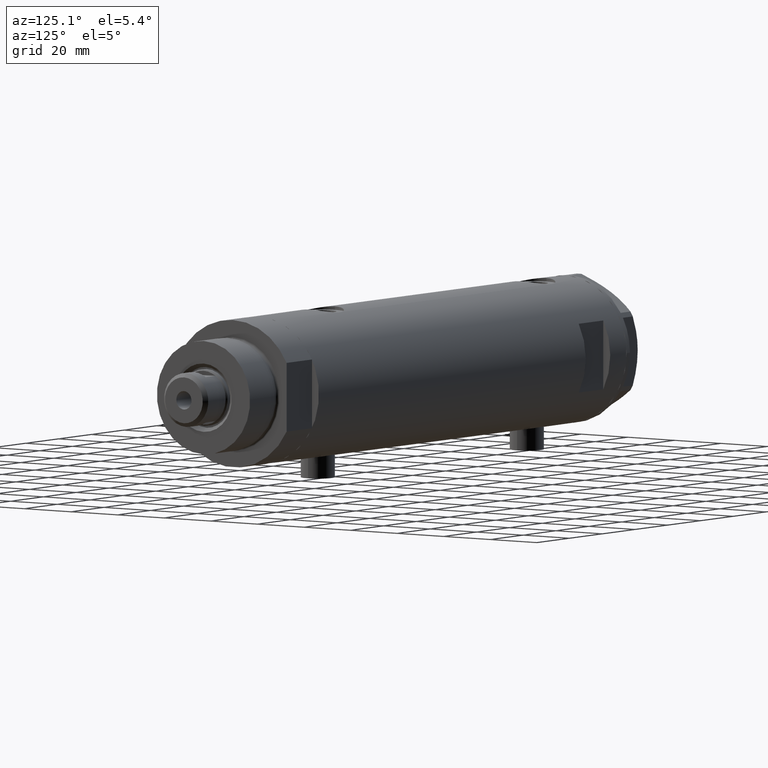
[diagram: clean part render]
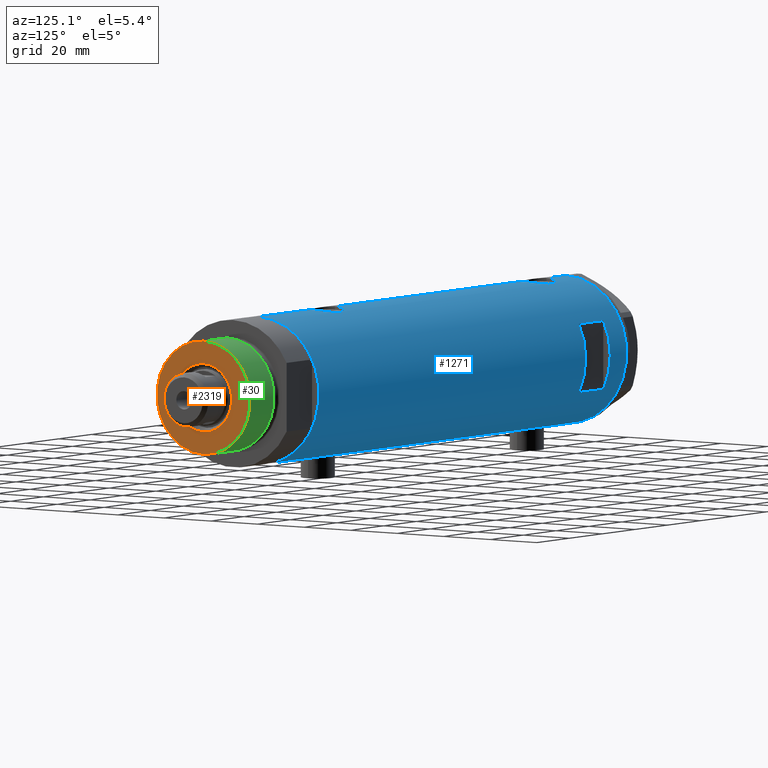
[diagram: same view with three faces highlighted in distinct colors, each labeled with its STEP entity id]
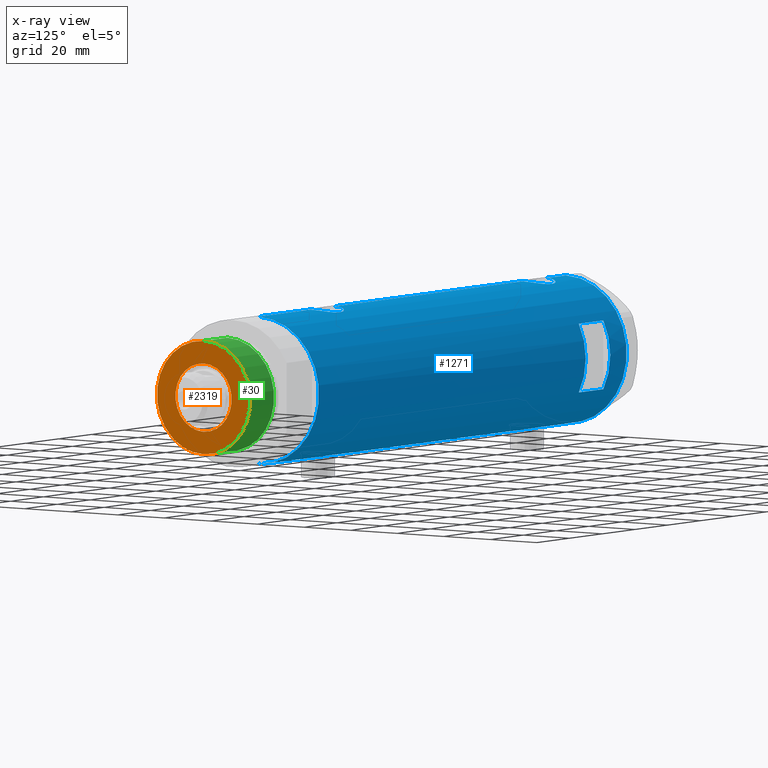
[diagram: x-ray of the same camera — body ghosted, the three highlighted faces saturated]
A machine part, auxiliary view with three faces highlighted in distinct colors.
The next image is the same camera in x-ray (body ghosted, the three faces saturated) — at least one of them is partly hidden behind the body in this view.
Their STEP definitions:

[orange] entity #2319 — the highlighted planar face has unit normal (1, 0, -0).
#89 = EDGE_CURVE ( 'NONE', #1441, #4258, #2733, .T. ) ;
#123 = AXIS2_PLACEMENT_3D ( 'NONE', #3427, #3819, #2581 ) ;
#300 = CARTESIAN_POINT ( 'NONE',  ( 0.000000000000000000, 0.000000000000000000, 33.50000000000000000 ) ) ;
#323 = CARTESIAN_POINT ( 'NONE',  ( -12.05000000000000426, 1.475699392972560823E-15, 33.50000000000000000 ) ) ;
#462 = ORIENTED_EDGE ( 'NONE', *, *, #3017, .T. ) ;
#710 = DIRECTION ( 'NONE',  ( 1.000000000000000000, 0.000000000000000000, 0.000000000000000000 ) ) ;
#747 = VERTEX_POINT ( 'NONE', #3946 ) ;
#886 = CARTESIAN_POINT ( 'NONE',  ( -19.99999999999999645, 0.000000000000000000, 33.50000000000000000 ) ) ;
#1327 = CIRCLE ( 'NONE', #1872, 12.05000000000000426 ) ;
#1407 = CIRCLE ( 'NONE', #4160, 19.99999999999999645 ) ;
#1441 = VERTEX_POINT ( 'NONE', #323 ) ;
#1477 = FACE_OUTER_BOUND ( 'NONE', #2098, .T. ) ;
#1651 = CARTESIAN_POINT ( 'NONE',  ( 0.000000000000000000, 0.000000000000000000, 33.50000000000000000 ) ) ;
#1741 = ORIENTED_EDGE ( 'NONE', *, *, #2945, .T. ) ;
#1804 = CARTESIAN_POINT ( 'NONE',  ( 0.000000000000000000, 0.000000000000000000, 33.50000000000000000 ) ) ;
#1821 = DIRECTION ( 'NONE',  ( 0.000000000000000000, 0.000000000000000000, 1.000000000000000000 ) ) ;
#1872 = AXIS2_PLACEMENT_3D ( 'NONE', #1804, #2934, #3367 ) ;
#2098 = EDGE_LOOP ( 'NONE', ( #462, #1741 ) ) ;
#2194 = DIRECTION ( 'NONE',  ( 0.000000000000000000, 0.000000000000000000, 1.000000000000000000 ) ) ;
#2286 = PLANE ( 'NONE',  #123 ) ;
#2319 = ADVANCED_FACE ( 'NONE', ( #4576, #1477 ), #2286, .T. ) ;
#2380 = DIRECTION ( 'NONE',  ( 1.000000000000000000, 0.000000000000000000, 0.000000000000000000 ) ) ;
#2405 = EDGE_LOOP ( 'NONE', ( #3896, #4763 ) ) ;
#2575 = AXIS2_PLACEMENT_3D ( 'NONE', #1651, #4699, #2380 ) ;
#2581 = DIRECTION ( 'NONE',  ( 1.000000000000000000, 0.000000000000000000, -0.000000000000000000 ) ) ;
#2620 = EDGE_CURVE ( 'NONE', #4258, #1441, #1327, .T. ) ;
#2733 = CIRCLE ( 'NONE', #2575, 12.05000000000000426 ) ;
#2934 = DIRECTION ( 'NONE',  ( -0.000000000000000000, -0.000000000000000000, -1.000000000000000000 ) ) ;
#2945 = EDGE_CURVE ( 'NONE', #747, #4278, #1407, .T. ) ;
#3017 = EDGE_CURVE ( 'NONE', #4278, #747, #3920, .T. ) ;
#3367 = DIRECTION ( 'NONE',  ( 1.000000000000000000, 0.000000000000000000, 0.000000000000000000 ) ) ;
#3427 = CARTESIAN_POINT ( 'NONE',  ( 0.000000000000000000, 0.000000000000000000, 33.50000000000000000 ) ) ;
#3574 = CARTESIAN_POINT ( 'NONE',  ( 0.000000000000000000, 0.000000000000000000, 33.50000000000000000 ) ) ;
#3819 = DIRECTION ( 'NONE',  ( 0.000000000000000000, 0.000000000000000000, 1.000000000000000000 ) ) ;
#3851 = AXIS2_PLACEMENT_3D ( 'NONE', #3574, #1821, #4122 ) ;
#3896 = ORIENTED_EDGE ( 'NONE', *, *, #2620, .T. ) ;
#3920 = CIRCLE ( 'NONE', #3851, 19.99999999999999645 ) ;
#3946 = CARTESIAN_POINT ( 'NONE',  ( 19.99999999999999645, 2.449293598294706119E-15, 33.50000000000000000 ) ) ;
#4122 = DIRECTION ( 'NONE',  ( 1.000000000000000000, 0.000000000000000000, 0.000000000000000000 ) ) ;
#4160 = AXIS2_PLACEMENT_3D ( 'NONE', #300, #2194, #710 ) ;
#4258 = VERTEX_POINT ( 'NONE', #4843 ) ;
#4278 = VERTEX_POINT ( 'NONE', #886 ) ;
#4576 = FACE_BOUND ( 'NONE', #2405, .T. ) ;
#4699 = DIRECTION ( 'NONE',  ( -0.000000000000000000, -0.000000000000000000, -1.000000000000000000 ) ) ;
#4763 = ORIENTED_EDGE ( 'NONE', *, *, #89, .T. ) ;
#4843 = CARTESIAN_POINT ( 'NONE',  ( 12.05000000000000426, 0.000000000000000000, 33.50000000000000000 ) ) ;

[blue] entity #1271 — the highlighted cylindrical surface (partial cylindrical patch) has radius 26 mm, axis along (-1, -0, 0).
#6 = CARTESIAN_POINT ( 'NONE',  ( 25.78997056644825392, 3.329333406239046056, 81.18834808433850014 ) ) ;
#40 = CARTESIAN_POINT ( 'NONE',  ( -25.33346170681504006, 5.849967696906726466, -55.44052947900495809 ) ) ;
#48 = CARTESIAN_POINT ( 'NONE',  ( 12.12435565298213724, 23.00000000000000355, 68.95000000000000284 ) ) ;
#61 = DIRECTION ( 'NONE',  ( 0.000000000000000000, 1.000000000000000000, -4.803849625781927035E-15 ) ) ;
#71 = VECTOR ( 'NONE', #3741, 1000.000000000000000 ) ;
#118 = CIRCLE ( 'NONE', #1089, 26.00000000000000355 ) ;
#121 = CARTESIAN_POINT ( 'NONE',  ( -25.95015815577422913, 1.621168830448742826, 75.98958570439820903 ) ) ;
#137 = CIRCLE ( 'NONE', #4246, 26.00000000000000355 ) ;
#140 = DIRECTION ( 'NONE',  ( 0.000000000000000000, 0.000000000000000000, 1.000000000000000000 ) ) ;
#146 = CARTESIAN_POINT ( 'NONE',  ( -26.00000000000000711, 0.2043916521039016998, -63.90000000000001279 ) ) ;
#178 = VERTEX_POINT ( 'NONE', #3461 ) ;
#191 = CARTESIAN_POINT ( 'NONE',  ( -25.45277932469920046, 5.307477387851101014, 66.64327199834690418 ) ) ;
#210 = VERTEX_POINT ( 'NONE', #48 ) ;
#213 = CARTESIAN_POINT ( 'NONE',  ( 25.94484652078418563, 1.709678645892022342, 67.14334653240823059 ) ) ;
#221 = CARTESIAN_POINT ( 'NONE',  ( 24.97016856345952718, 7.245430721349219283, -56.70303040919392856 ) ) ;
#232 = EDGE_CURVE ( 'NONE', #1229, #3112, #508, .T. ) ;
#240 = CARTESIAN_POINT ( 'NONE',  ( 25.17424625143663519, 6.506691718592092499, 70.68758373966274178 ) ) ;
#264 = CARTESIAN_POINT ( 'NONE',  ( -26.00000000000000355, 3.184077527325983904E-15, 63.70000000000000995 ) ) ;
#271 = CARTESIAN_POINT ( 'NONE',  ( 25.78997056644824326, 3.329333406239038951, -48.01165191566153112 ) ) ;
#288 = EDGE_CURVE ( 'NONE', #1116, #2578, #3134, .T. ) ;
#304 = CARTESIAN_POINT ( 'NONE',  ( 25.31017500740584936, 5.951503630041857562, -50.17950407362597076 ) ) ;
#320 = CARTESIAN_POINT ( 'NONE',  ( 25.99652140603931727, 0.4914164889130596126, 81.93796820480459075 ) ) ;
#328 = CARTESIAN_POINT ( 'NONE',  ( 25.03487248886523986, 7.018875226450791871, -57.40423217392064714 ) ) ;
#413 = LINE ( 'NONE', #1226, #3926 ) ;
#418 = ORIENTED_EDGE ( 'NONE', *, *, #966, .F. ) ;
#450 = DIRECTION ( 'NONE',  ( 1.000000000000000000, -5.329070518200751394E-15, 0.000000000000000000 ) ) ;
#507 = EDGE_CURVE ( 'NONE', #4199, #4585, #1503, .T. ) ;
#508 = B_SPLINE_CURVE_WITH_KNOTS ( 'NONE', 3,
 ( #3068, #4565, #4604, #3828, #873, #3880, #1519, #3014, #1285, #2979, #1382, #3338, #2209, #4210, #1861, #40, #1895, #1156, #4159, #3051, #833, #814, #3932, #525, #1247, #2374, #2020, #3152, #859, #1277, #4666, #3178, #954, #1617, #2770, #3865, #903, #2388, #3905, #1295, #3491, #3541, #146, #2813 ),
 .UNSPECIFIED., .F., .F.,
 ( 4, 2, 2, 2, 2, 2, 2, 2, 2, 2, 2, 2, 2, 2, 2, 2, 2, 2, 2, 2, 2, 4 ),
 ( 8.259724962660511443E-19, 0.001225774033668413547, 0.001838661050502616960, 0.002451548067336820590, 0.003677322101005227849, 0.004903096134673635108, 0.006128870168342044969, 0.007354644202010452228, 0.007967531218844647184, 0.008580418235678840405, 0.009806192269347230317, 0.01103196630301561676, 0.01225774033668400667, 0.01287062735351820163, 0.01348351437035239485, 0.01409640138718658807, 0.01470928840402078129, 0.01593506243768920069, 0.01716083647135761489, 0.01838661050502603256, 0.01899949752186024313, 0.01961238453869445023 ),
 .UNSPECIFIED. ) ;
#518 = CARTESIAN_POINT ( 'NONE',  ( 25.86510134953875450, 2.654921787384013854, 67.43132938305096502 ) ) ;
#525 = CARTESIAN_POINT ( 'NONE',  ( -25.28673619335056699, 6.048783215285175707, -59.27550990348180449 ) ) ;
#548 = CARTESIAN_POINT ( 'NONE',  ( 24.90951684770588770, 7.451587374037535128, 73.46604395478802019 ) ) ;
#582 = DIRECTION ( 'NONE',  ( 0.000000000000000000, 0.000000000000000000, 1.000000000000000000 ) ) ;
#603 = CARTESIAN_POINT ( 'NONE',  ( 25.97197502027375293, 1.230965554787593730, -47.34759175501623218 ) ) ;
#604 = CARTESIAN_POINT ( 'NONE',  ( -25.49884629689154281, 5.081547904122039938, 66.30560194303913590 ) ) ;
#626 = CARTESIAN_POINT ( 'NONE',  ( 25.52465069878074289, 4.952713637311392247, 68.81255139184744962 ) ) ;
#635 = CARTESIAN_POINT ( 'NONE',  ( 25.98569222077104968, 0.9879514382926379845, -62.20081846687560301 ) ) ;
#636 = CARTESIAN_POINT ( 'NONE',  ( -25.99759026373432391, 0.4091325989570679389, 63.71000109955102175 ) ) ;
#654 = CARTESIAN_POINT ( 'NONE',  ( 25.38117076385347559, 5.641057083563602248, 79.39856579741847042 ) ) ;
#662 = CARTESIAN_POINT ( 'NONE',  ( 25.98255381630415783, 0.9836221648041303389, -47.31066901941807856 ) ) ;
#684 = CARTESIAN_POINT ( 'NONE',  ( 25.27545867390324119, 6.096774941222088628, -50.37522593042033492 ) ) ;
#689 = CARTESIAN_POINT ( 'NONE',  ( 26.00000000000000355, -3.975025925197986111E-20, -47.25000000000000000 ) ) ;
#698 = CARTESIAN_POINT ( 'NONE',  ( 24.89471231507667426, 7.500219916954787180, 74.93878226883029470 ) ) ;
#714 = CARTESIAN_POINT ( 'NONE',  ( 25.20855488770171959, 6.367749707222635891, -50.77997776959043108 ) ) ;
#718 = VECTOR ( 'NONE', #582, 1000.000000000000000 ) ;
#749 = CARTESIAN_POINT ( 'NONE',  ( 26.00000000000000711, 0.2455784580650491045, 81.94999999999997442 ) ) ;
#755 = CARTESIAN_POINT ( 'NONE',  ( -26.00000000000000355, 1.227111019500118713E-15, 76.20000000000001705 ) ) ;
#766 = DIRECTION ( 'NONE',  ( 0.000000000000000000, 0.000000000000000000, 1.000000000000000000 ) ) ;
#780 = ORIENTED_EDGE ( 'NONE', *, *, #288, .F. ) ;
#783 = CIRCLE ( 'NONE', #3528, 26.00000000000000355 ) ;
#814 = CARTESIAN_POINT ( 'NONE',  ( -25.23757896588369221, 6.250168635417633567, -58.05675308410501145 ) ) ;
#833 = CARTESIAN_POINT ( 'NONE',  ( -25.23766275406409676, 6.249830297096031551, -57.23808095444884003 ) ) ;
#859 = CARTESIAN_POINT ( 'NONE',  ( -25.45277932469921467, 5.307477387851106343, -60.95672800165311855 ) ) ;
#873 = CARTESIAN_POINT ( 'NONE',  ( -25.95015815577423268, 1.621168830448744158, -51.61041429560182081 ) ) ;
#896 = CARTESIAN_POINT ( 'NONE',  ( 25.11254978876589306, 6.737777305585155752, 71.11974648253585940 ) ) ;
#899 = CARTESIAN_POINT ( 'NONE',  ( -12.12435565298214080, 23.00000000000000355, 83.95000000000000284 ) ) ;
#903 = CARTESIAN_POINT ( 'NONE',  ( -25.85449082491264150, 2.772892880050693787, -63.26609297485322259 ) ) ;
#915 = CARTESIAN_POINT ( 'NONE',  ( 25.88814720404043968, 2.420758939209242566, 67.34711713171545000 ) ) ;
#942 = CARTESIAN_POINT ( 'NONE',  ( 26.00000000000001066, 0.4983968644076011700, 66.95000000000003126 ) ) ;
#954 = CARTESIAN_POINT ( 'NONE',  ( -25.59680708126580129, 4.563450671387948354, -61.92543949979970819 ) ) ;
#966 = EDGE_CURVE ( 'NONE', #178, #4199, #4824, .T. ) ;
#972 = EDGE_CURVE ( 'NONE', #4128, #2330, #4475, .T. ) ;
#979 = CARTESIAN_POINT ( 'NONE',  ( -25.95208098418916975, 1.628413954368974625, 63.90193207829288013 ) ) ;
#994 = CARTESIAN_POINT ( 'NONE',  ( 25.78922176490238272, 3.335318700939508219, 67.71449431233527605 ) ) ;
#1003 = CARTESIAN_POINT ( 'NONE',  ( 24.95233689475079331, 7.306396477445179727, -56.46103813146666539 ) ) ;
#1004 = CARTESIAN_POINT ( 'NONE',  ( -25.38875076695534361, 5.605452563035131064, 67.17814099175893716 ) ) ;
#1025 = CARTESIAN_POINT ( 'NONE',  ( 24.90976107960111818, 7.450765568638821001, 75.43882869351466525 ) ) ;
#1036 = CARTESIAN_POINT ( 'NONE',  ( 25.72868876879095623, 3.768709330223690479, -48.24732513129933409 ) ) ;
#1060 = CARTESIAN_POINT ( 'NONE',  ( 25.17636585680005723, 6.493453152855874322, -50.98900750337196541 ) ) ;
#1061 = CARTESIAN_POINT ( 'NONE',  ( -25.36894112891957320, 5.694149517195235433, 67.36517494801691441 ) ) ;
#1073 = CARTESIAN_POINT ( 'NONE',  ( 26.00000000000000355, -3.975028449552882818E-20, 81.94999999999998863 ) ) ;
#1089 = AXIS2_PLACEMENT_3D ( 'NONE', #4227, #1134, #61 ) ;
#1116 = VERTEX_POINT ( 'NONE', #755 ) ;
#1120 = CARTESIAN_POINT ( 'NONE',  ( 25.52590365620543622, 4.955152228772151446, 80.10123727588241138 ) ) ;
#1134 = DIRECTION ( 'NONE',  ( 0.000000000000000000, 4.625929269271486900E-15, 1.000000000000000000 ) ) ;
#1156 = CARTESIAN_POINT ( 'NONE',  ( -25.28915991580758771, 6.038390257328915212, -56.02447348853092279 ) ) ;
#1188 = CARTESIAN_POINT ( 'NONE',  ( 0.000000000000000000, 0.000000000000000000, -93.95000000000000284 ) ) ;
#1225 = CARTESIAN_POINT ( 'NONE',  ( -25.67095236150574777, 4.133649689219788925, 74.65535228274264057 ) ) ;
#1226 = CARTESIAN_POINT ( 'NONE',  ( -26.00000000000000355, 3.184081677783118585E-15, -93.95000000000000284 ) ) ;
#1229 = VERTEX_POINT ( 'NONE', #3535 ) ;
#1239 = CYLINDRICAL_SURFACE ( 'NONE', #2507, 26.00000000000000355 ) ;
#1247 = CARTESIAN_POINT ( 'NONE',  ( -25.31518616157687163, 5.930210831981644226, -59.66587117207024704 ) ) ;
#1271 = ADVANCED_FACE ( 'NONE', ( #3561, #3859 ), #1239, .T. ) ;
#1277 = CARTESIAN_POINT ( 'NONE',  ( -25.49884629689154636, 5.081547904122044379, -61.29439805696090815 ) ) ;
#1285 = CARTESIAN_POINT ( 'NONE',  ( -25.81251897318926680, 3.135439098787741852, -52.22800821914827907 ) ) ;
#1287 = CARTESIAN_POINT ( 'NONE',  ( 25.72923282622328500, 3.765147152416739917, 67.94514424215293502 ) ) ;
#1295 = CARTESIAN_POINT ( 'NONE',  ( -25.98057228346870673, 1.024901789261887464, -63.81880585854828070 ) ) ;
#1302 = ORIENTED_EDGE ( 'NONE', *, *, #1606, .F. ) ;
#1323 = LINE ( 'NONE', #2525, #718 ) ;
#1372 = CARTESIAN_POINT ( 'NONE',  ( 25.59685363299823280, 4.579266302355748053, -48.79027931897346804 ) ) ;
#1374 = CARTESIAN_POINT ( 'NONE',  ( -25.98057228346869607, 1.024901789261878138, 63.78119414145174204 ) ) ;
#1382 = CARTESIAN_POINT ( 'NONE',  ( -25.67095236150573712, 4.133649689219792478, -52.94464771725741770 ) ) ;
#1384 = EDGE_CURVE ( 'NONE', #2828, #4128, #4708, .T. ) ;
#1386 = VERTEX_POINT ( 'NONE', #3584 ) ;
#1387 = CARTESIAN_POINT ( 'NONE',  ( 25.63006864069250668, 4.375159448492141223, 68.35345588241118264 ) ) ;
#1396 = CARTESIAN_POINT ( 'NONE',  ( 25.38132706741445688, 5.649034551923786118, -59.70731952814044519 ) ) ;
#1397 = CARTESIAN_POINT ( 'NONE',  ( -25.24766879991037172, 6.209837761082654062, 70.76849569029700149 ) ) ;
#1423 = CARTESIAN_POINT ( 'NONE',  ( 25.30960479024496479, 5.958491152160522830, -59.33139677679963597 ) ) ;
#1424 = CARTESIAN_POINT ( 'NONE',  ( -25.52275868012768356, 4.960454986366445773, 66.14238370593371030 ) ) ;
#1434 = LINE ( 'NONE', #2176, #3158 ) ;
#1488 = CARTESIAN_POINT ( 'NONE',  ( 25.31017500740586001, 5.951503630041874437, 79.02049592637401076 ) ) ;
#1503 = LINE ( 'NONE', #3000, #2496 ) ;
#1519 = CARTESIAN_POINT ( 'NONE',  ( -25.90661719257678541, 2.209805098346977914, -51.80011254218477745 ) ) ;
#1534 = EDGE_LOOP ( 'NONE', ( #3155, #2531, #2011, #4692, #780, #1904, #2774, #3426, #1650, #2391, #418, #2227 ) ) ;
#1574 = EDGE_CURVE ( 'NONE', #4581, #178, #4828, .T. ) ;
#1598 = CARTESIAN_POINT ( 'NONE',  ( -25.81251897318926680, 3.135439098787735190, 75.37199178085172946 ) ) ;
#1606 = EDGE_CURVE ( 'NONE', #3602, #3039, #783, .T. ) ;
#1608 = CARTESIAN_POINT ( 'NONE',  ( 0.000000000000000000, 0.000000000000000000, 83.95000000000000284 ) ) ;
#1617 = CARTESIAN_POINT ( 'NONE',  ( -25.67176285215958131, 4.128807479817791837, -62.35991598451128226 ) ) ;
#1644 = CARTESIAN_POINT ( 'NONE',  ( -26.00000000000000355, 3.184077527250253257E-15, -63.90000000000001279 ) ) ;
#1650 = ORIENTED_EDGE ( 'NONE', *, *, #3945, .F. ) ;
#1663 = EDGE_CURVE ( 'NONE', #1116, #2330, #413, .T. ) ;
#1681 = CARTESIAN_POINT ( 'NONE',  ( -25.90661719257679607, 2.209805098346973029, 75.79988745781523107 ) ) ;
#1683 = EDGE_CURVE ( 'NONE', #210, #1386, #118, .T. ) ;
#1729 = CARTESIAN_POINT ( 'NONE',  ( 25.92799636947105668, 1.948138538329397651, 67.20322312211786198 ) ) ;
#1736 = CARTESIAN_POINT ( 'NONE',  ( 24.89484527721569052, 7.499778575171895056, -55.24550805482936511 ) ) ;
#1751 = CARTESIAN_POINT ( 'NONE',  ( 25.01140519645288762, 7.101774040639619479, 72.02607764299175130 ) ) ;
#1758 = CARTESIAN_POINT ( 'NONE',  ( 25.78922176490237916, 3.335318700939508219, -61.48550568766475521 ) ) ;
#1759 = CARTESIAN_POINT ( 'NONE',  ( -25.92432690655987315, 2.018143994254077978, 64.02070577177286737 ) ) ;
#1781 = CARTESIAN_POINT ( 'NONE',  ( 24.96662810169869573, 7.257932614256868753, -52.79702690473266102 ) ) ;
#1782 = CARTESIAN_POINT ( 'NONE',  ( -25.23766275406408965, 6.249830297096023557, 70.36191904555120402 ) ) ;
#1801 = CARTESIAN_POINT ( 'NONE',  ( 25.00820649268565887, 7.115348876445588999, 76.87184000475453161 ) ) ;
#1810 = CARTESIAN_POINT ( 'NONE',  ( 25.93077501166307641, 1.957027822413551332, -47.49302141437592439 ) ) ;
#1826 = CARTESIAN_POINT ( 'NONE',  ( 25.93077501166307641, 1.957027822413550888, 81.70697858562411398 ) ) ;
#1834 = CARTESIAN_POINT ( 'NONE',  ( 25.41763780493360514, 5.474943943663457269, -49.61823686211067042 ) ) ;
#1850 = CARTESIAN_POINT ( 'NONE',  ( -26.00000000000000355, 3.184081677783118585E-15, -93.95000000000000284 ) ) ;
#1861 = CARTESIAN_POINT ( 'NONE',  ( -25.38675822915647728, 5.615881323213575804, -54.87693218337989265 ) ) ;
#1865 = CARTESIAN_POINT ( 'NONE',  ( 26.00000000000000355, 0.000000000000000000, -93.95000000000000284 ) ) ;
#1881 = VECTOR ( 'NONE', #4112, 1000.000000000000000 ) ;
#1895 = CARTESIAN_POINT ( 'NONE',  ( -25.31738333113901618, 5.918941409682884291, -55.63242077527677765 ) ) ;
#1904 = ORIENTED_EDGE ( 'NONE', *, *, #1663, .T. ) ;
#2011 = ORIENTED_EDGE ( 'NONE', *, *, #232, .F. ) ;
#2012 = CARTESIAN_POINT ( 'NONE',  ( 26.00000000000000355, -2.747580718823405516E-15, 66.95000000000000284 ) ) ;
#2020 = CARTESIAN_POINT ( 'NONE',  ( -25.38875076695534361, 5.605452563035141722, -60.42185900824105715 ) ) ;
#2045 = CARTESIAN_POINT ( 'NONE',  ( -25.96182217530153480, 1.422664245316465959, 76.03935273092392322 ) ) ;
#2062 = CARTESIAN_POINT ( 'NONE',  ( 26.00000000000000355, 0.000000000000000000, -93.95000000000000284 ) ) ;
#2092 = CARTESIAN_POINT ( 'NONE',  ( -25.31518616157687518, 5.930210831981638009, 67.93412882792976859 ) ) ;
#2102 = ORIENTED_EDGE ( 'NONE', *, *, #2433, .F. ) ;
#2116 = CARTESIAN_POINT ( 'NONE',  ( -12.12435565298214080, 23.00000000000000355, -93.95000000000000284 ) ) ;
#2138 = LINE ( 'NONE', #1850, #71 ) ;
#2176 = CARTESIAN_POINT ( 'NONE',  ( 12.12435565298214080, 23.00000000000000355, -93.95000000000000284 ) ) ;
#2187 = CARTESIAN_POINT ( 'NONE',  ( 25.17636585680005723, 6.493453152855874322, 78.21099249662802322 ) ) ;
#2198 = CARTESIAN_POINT ( 'NONE',  ( 25.52590365620542912, 4.955152228772147893, -49.09876272411761988 ) ) ;
#2209 = CARTESIAN_POINT ( 'NONE',  ( -25.52242378584900351, 4.965907353613399522, -53.83280397078263491 ) ) ;
#2227 = ORIENTED_EDGE ( 'NONE', *, *, #1574, .F. ) ;
#2235 = CARTESIAN_POINT ( 'NONE',  ( 24.96662810169869573, 7.257932614256865200, 76.40297309526735603 ) ) ;
#2258 = CARTESIAN_POINT ( 'NONE',  ( 26.00000000000000355, -2.747580718823405516E-15, 66.95000000000000284 ) ) ;
#2290 = CARTESIAN_POINT ( 'NONE',  ( 12.12435565298214080, 23.00000000000000355, 83.95000000000000284 ) ) ;
#2330 = VERTEX_POINT ( 'NONE', #2806 ) ;
#2354 = CARTESIAN_POINT ( 'NONE',  ( -25.42927140605242187, 5.422776733968214025, 73.08443996013286892 ) ) ;
#2374 = CARTESIAN_POINT ( 'NONE',  ( -25.36894112891956254, 5.694149517195242538, -60.23482505198307990 ) ) ;
#2383 = CARTESIAN_POINT ( 'NONE',  ( 24.97016856345952007, 7.245430721349213954, 72.49696959080606007 ) ) ;
#2384 = CARTESIAN_POINT ( 'NONE',  ( 0.000000000000000000, 0.000000000000000000, -93.95000000000000284 ) ) ;
#2388 = CARTESIAN_POINT ( 'NONE',  ( -25.92432690655987315, 2.018143994254076201, -63.57929422822715537 ) ) ;
#2391 = ORIENTED_EDGE ( 'NONE', *, *, #507, .F. ) ;
#2433 = EDGE_CURVE ( 'NONE', #1386, #3602, #4680, .T. ) ;
#2463 = DIRECTION ( 'NONE',  ( 0.000000000000000000, 0.000000000000000000, 1.000000000000000000 ) ) ;
#2468 = CARTESIAN_POINT ( 'NONE',  ( -25.38675822915647728, 5.615881323213574028, 72.72306781662010167 ) ) ;
#2496 = VECTOR ( 'NONE', #4609, 1000.000000000000000 ) ;
#2497 = CARTESIAN_POINT ( 'NONE',  ( 0.000000000000000000, 0.000000000000000000, 93.95000000000000284 ) ) ;
#2504 = DIRECTION ( 'NONE',  ( -0.000000000000000000, -0.000000000000000000, -1.000000000000000000 ) ) ;
#2507 = AXIS2_PLACEMENT_3D ( 'NONE', #2384, #140, #2716 ) ;
#2515 = CARTESIAN_POINT ( 'NONE',  ( 25.11550258961940330, 6.725017566862031337, 77.77928477806021590 ) ) ;
#2521 = CARTESIAN_POINT ( 'NONE',  ( 25.17424625143663164, 6.506691718592096940, -58.51241626033723975 ) ) ;
#2522 = CARTESIAN_POINT ( 'NONE',  ( -25.28915991580760192, 6.038390257328910771, 71.57552651146907863 ) ) ;
#2525 = CARTESIAN_POINT ( 'NONE',  ( -26.00000000000000355, 3.184081677783118585E-15, -93.95000000000000284 ) ) ;
#2531 = ORIENTED_EDGE ( 'NONE', *, *, #4348, .T. ) ;
#2548 = CARTESIAN_POINT ( 'NONE',  ( 25.72923282622328855, 3.765147152416745246, -61.25485575784708914 ) ) ;
#2549 = CARTESIAN_POINT ( 'NONE',  ( -25.81206132723604796, 3.139065735901513055, 64.53021230639123473 ) ) ;
#2571 = CARTESIAN_POINT ( 'NONE',  ( 24.90976107960111818, 7.450765568638821890, -53.76117130648535181 ) ) ;
#2578 = VERTEX_POINT ( 'NONE', #264 ) ;
#2617 = CARTESIAN_POINT ( 'NONE',  ( 25.08669247833292459, 6.831361936037321669, 77.55537739403790454 ) ) ;
#2716 = DIRECTION ( 'NONE',  ( 1.000000000000000000, 0.000000000000000000, 0.000000000000000000 ) ) ;
#2719 = ORIENTED_EDGE ( 'NONE', *, *, #4663, .F. ) ;
#2722 = CARTESIAN_POINT ( 'NONE',  ( -25.57189498399054983, 4.707763994471525493, 74.08090281055548587 ) ) ;
#2770 = CARTESIAN_POINT ( 'NONE',  ( -25.72087293759780025, 3.814831448865739105, -62.61738294827859619 ) ) ;
#2774 = ORIENTED_EDGE ( 'NONE', *, *, #972, .F. ) ;
#2783 = CARTESIAN_POINT ( 'NONE',  ( 25.38132706741445332, 5.649034551923781677, 69.49268047185955766 ) ) ;
#2806 = CARTESIAN_POINT ( 'NONE',  ( -26.00000000000000355, 3.184081677783118585E-15, 93.95000000000000284 ) ) ;
#2813 = CARTESIAN_POINT ( 'NONE',  ( -26.00000000000000355, 3.184077527250253257E-15, -63.90000000000001279 ) ) ;
#2828 = VERTEX_POINT ( 'NONE', #3442 ) ;
#2844 = CARTESIAN_POINT ( 'NONE',  ( 25.63006864069249602, 4.375159448492148329, -60.84654411758881309 ) ) ;
#2866 = CARTESIAN_POINT ( 'NONE',  ( -26.00000000000000355, 3.184077527325983904E-15, 63.70000000000000995 ) ) ;
#2890 = CARTESIAN_POINT ( 'NONE',  ( 25.38117076385348625, 5.641057083563588037, -49.80143420258151821 ) ) ;
#2891 = CARTESIAN_POINT ( 'NONE',  ( -25.59680708126579773, 4.563450671387936808, 65.67456050020027192 ) ) ;
#2918 = CARTESIAN_POINT ( 'NONE',  ( 26.00000000000000711, 0.4983968644076025023, -62.25000000000002132 ) ) ;
#2919 = CARTESIAN_POINT ( 'NONE',  ( -25.57167265924275057, 4.701795585128869526, 65.82723711689968127 ) ) ;
#2940 = CARTESIAN_POINT ( 'NONE',  ( 25.00820649268565887, 7.115348876445586335, -52.32815999524549966 ) ) ;
#2955 = CARTESIAN_POINT ( 'NONE',  ( 25.72868876879096334, 3.768709330223698473, 80.95267486870062612 ) ) ;
#2965 = VECTOR ( 'NONE', #4346, 1000.000000000000000 ) ;
#2979 = CARTESIAN_POINT ( 'NONE',  ( -25.72105193281916868, 3.813738527046913962, -52.68166308900566719 ) ) ;
#3000 = CARTESIAN_POINT ( 'NONE',  ( 26.00000000000000355, 0.000000000000000000, -93.95000000000000284 ) ) ;
#3014 = CARTESIAN_POINT ( 'NONE',  ( -25.85406084573621754, 2.777003695811657735, -52.03587158673904156 ) ) ;
#3039 = VERTEX_POINT ( 'NONE', #2290 ) ;
#3051 = CARTESIAN_POINT ( 'NONE',  ( -25.24766879991037882, 6.209837761082661167, -56.83150430970306388 ) ) ;
#3068 = CARTESIAN_POINT ( 'NONE',  ( -26.00000000000000355, -8.503928565788675107E-16, -51.39999999999999858 ) ) ;
#3101 = CARTESIAN_POINT ( 'NONE',  ( -25.72105193281917579, 3.813738527046907745, 74.91833691099432713 ) ) ;
#3112 = VERTEX_POINT ( 'NONE', #1644 ) ;
#3134 = B_SPLINE_CURVE_WITH_KNOTS ( 'NONE', 3,
 ( #3512, #4618, #4252, #2045, #121, #3566, #1681, #4686, #1598, #3101, #1225, #2722, #4226, #2354, #2468, #3298, #4735, #2522, #4351, #1397, #1782, #4788, #3984, #4040, #2092, #1061, #1004, #3666, #191, #604, #1424, #2919, #2891, #4712, #4430, #2549, #4064, #1759, #979, #1374, #4013, #636, #4402, #2866 ),
 .UNSPECIFIED., .F., .F.,
 ( 4, 2, 2, 2, 2, 2, 2, 2, 2, 2, 2, 2, 2, 2, 2, 2, 2, 2, 2, 2, 2, 4 ),
 ( 1.191872608207982896E-18, 0.001225774033668414415, 0.001838661050502624766, 0.002451548067336834901, 0.003677322101005254303, 0.004903096134673673272, 0.006128870168342093541, 0.007354644202010512943, 0.007967531218844704430, 0.008580418235678894182, 0.009806192269347313584, 0.01103196630301573472, 0.01225774033668415586, 0.01287062735351834561, 0.01348351437035253536, 0.01409640138718672858, 0.01470928840402092007, 0.01593506243768930131, 0.01716083647135768081, 0.01838661050502606725, 0.01899949752186025700, 0.01961238453869444676 ),
 .UNSPECIFIED. ) ;
#3141 = AXIS2_PLACEMENT_3D ( 'NONE', #2497, #4089, #4815 ) ;
#3152 = CARTESIAN_POINT ( 'NONE',  ( -25.43062364804612940, 5.412314182902760784, -60.78227648580931941 ) ) ;
#3155 = ORIENTED_EDGE ( 'NONE', *, *, #4554, .T. ) ;
#3158 = VECTOR ( 'NONE', #2504, 1000.000000000000000 ) ;
#3178 = CARTESIAN_POINT ( 'NONE',  ( -25.57167265924275057, 4.701795585128879296, -61.77276288310033436 ) ) ;
#3184 = DIRECTION ( 'NONE',  ( -0.000000000000000000, -0.000000000000000000, -1.000000000000000000 ) ) ;
#3219 = CARTESIAN_POINT ( 'NONE',  ( 26.00000000000000355, 0.000000000000000000, 93.95000000000000284 ) ) ;
#3273 = CARTESIAN_POINT ( 'NONE',  ( 25.52465069878074999, 4.952713637311402906, -60.38744860815256743 ) ) ;
#3285 = CARTESIAN_POINT ( 'NONE',  ( 25.98255381630416139, 0.9836221648041364451, 81.88933098058191717 ) ) ;
#3297 = CARTESIAN_POINT ( 'NONE',  ( 25.01140519645288762, 7.101774040639623919, -57.17392235700823733 ) ) ;
#3298 = CARTESIAN_POINT ( 'NONE',  ( -25.33346170681504361, 5.849967696906720249, 72.15947052099508596 ) ) ;
#3316 = CARTESIAN_POINT ( 'NONE',  ( 25.27545867390324830, 6.096774941222087740, 78.82477406957966082 ) ) ;
#3328 = CARTESIAN_POINT ( 'NONE',  ( 26.00000000000000355, -3.975025925197986111E-20, -47.25000000000000000 ) ) ;
#3338 = CARTESIAN_POINT ( 'NONE',  ( -25.57189498399055694, 4.707763994471532598, -53.51909718944453687 ) ) ;
#3354 = CARTESIAN_POINT ( 'NONE',  ( 26.00000000000000000, 0.2455784580650491877, -47.25000000000000000 ) ) ;
#3394 = CARTESIAN_POINT ( 'NONE',  ( 25.59685363299823635, 4.579266302355753382, 80.40972068102654191 ) ) ;
#3426 = ORIENTED_EDGE ( 'NONE', *, *, #1384, .F. ) ;
#3442 = CARTESIAN_POINT ( 'NONE',  ( 26.00000000000000355, -3.975028449552882818E-20, 81.94999999999998863 ) ) ;
#3461 = CARTESIAN_POINT ( 'NONE',  ( 26.00000000000000355, 3.343657407582877388E-16, -62.25000000000000000 ) ) ;
#3491 = CARTESIAN_POINT ( 'NONE',  ( -25.98789693408478740, 0.8193301824842007530, -63.84948980265349405 ) ) ;
#3512 = CARTESIAN_POINT ( 'NONE',  ( -26.00000000000000355, 1.227111019500118713E-15, 76.20000000000001705 ) ) ;
#3517 = EDGE_LOOP ( 'NONE', ( #2102, #3648, #2719, #1302 ) ) ;
#3528 = AXIS2_PLACEMENT_3D ( 'NONE', #1608, #3184, #450 ) ;
#3532 = CARTESIAN_POINT ( 'NONE',  ( 24.95233689475078620, 7.306396477445174398, 72.73896186853336587 ) ) ;
#3535 = CARTESIAN_POINT ( 'NONE',  ( -26.00000000000000355, -8.503928565788675107E-16, -51.39999999999999858 ) ) ;
#3541 = CARTESIAN_POINT ( 'NONE',  ( -25.99759026373432036, 0.4091325989570689381, -63.88999890044897967 ) ) ;
#3561 = FACE_BOUND ( 'NONE', #3517, .T. ) ;
#3566 = CARTESIAN_POINT ( 'NONE',  ( -25.92257874449350652, 2.014648337067151296, 75.86996418363679595 ) ) ;
#3584 = CARTESIAN_POINT ( 'NONE',  ( -12.12435565298214080, 23.00000000000000355, 68.95000000000000284 ) ) ;
#3602 = VERTEX_POINT ( 'NONE', #899 ) ;
#3603 = CARTESIAN_POINT ( 'NONE',  ( 25.98569222077104968, 0.9879514382926418703, 66.99918153312439983 ) ) ;
#3612 = CARTESIAN_POINT ( 'NONE',  ( 25.92799636947105313, 1.948138538329397651, -61.99677687788213376 ) ) ;
#3636 = CARTESIAN_POINT ( 'NONE',  ( 25.48882460966380492, 5.133289275481214275, 68.97656476402090675 ) ) ;
#3641 = CARTESIAN_POINT ( 'NONE',  ( 26.00000000000000355, 3.343657407582877388E-16, -62.25000000000000000 ) ) ;
#3648 = ORIENTED_EDGE ( 'NONE', *, *, #1683, .F. ) ;
#3665 = CARTESIAN_POINT ( 'NONE',  ( 25.59528664075983428, 4.573671112500298896, -60.69909503516726090 ) ) ;
#3666 = CARTESIAN_POINT ( 'NONE',  ( -25.43062364804611875, 5.412314182902751902, 66.81772351419068912 ) ) ;
#3698 = CARTESIAN_POINT ( 'NONE',  ( 25.86510134953875450, 2.654921787384013854, -61.76867061694904493 ) ) ;
#3716 = CARTESIAN_POINT ( 'NONE',  ( 25.97197502027376004, 1.230965554787597060, 81.85240824498373513 ) ) ;
#3727 = CARTESIAN_POINT ( 'NONE',  ( 25.08669247833291749, 6.831361936037321669, -51.64462260596209831 ) ) ;
#3741 = DIRECTION ( 'NONE',  ( 0.000000000000000000, 0.000000000000000000, 1.000000000000000000 ) ) ;
#3762 = CARTESIAN_POINT ( 'NONE',  ( -26.00000000000000355, 3.184081677783118585E-15, -93.95000000000000284 ) ) ;
#3828 = CARTESIAN_POINT ( 'NONE',  ( -25.96182217530152769, 1.422664245316466847, -51.56064726907609241 ) ) ;
#3859 = FACE_OUTER_BOUND ( 'NONE', #1534, .T. ) ;
#3865 = CARTESIAN_POINT ( 'NONE',  ( -25.81206132723605506, 3.139065735901513055, -63.06978769360878090 ) ) ;
#3880 = CARTESIAN_POINT ( 'NONE',  ( -25.92257874449351007, 2.014648337067152184, -51.73003581636323389 ) ) ;
#3905 = CARTESIAN_POINT ( 'NONE',  ( -25.95208098418916975, 1.628413954368986172, -63.69806792170716392 ) ) ;
#3924 = CARTESIAN_POINT ( 'NONE',  ( 25.30960479024496479, 5.958491152160513948, 69.86860322320036687 ) ) ;
#3926 = VECTOR ( 'NONE', #4187, 1000.000000000000000 ) ;
#3932 = CARTESIAN_POINT ( 'NONE',  ( -25.24784248027028966, 6.209126813737967154, -58.47268161688059251 ) ) ;
#3945 = EDGE_CURVE ( 'NONE', #4585, #2828, #4500, .T. ) ;
#3971 = VERTEX_POINT ( 'NONE', #3762 ) ;
#3983 = CARTESIAN_POINT ( 'NONE',  ( 24.90951684770588415, 7.451587374037536016, -55.73395604521197555 ) ) ;
#3984 = CARTESIAN_POINT ( 'NONE',  ( -25.24784248027028966, 6.209126813737962713, 69.12731838311943022 ) ) ;
#4002 = CARTESIAN_POINT ( 'NONE',  ( 25.59528664075984139, 4.573671112500290903, 68.50090496483272773 ) ) ;
#4011 = EDGE_CURVE ( 'NONE', #1229, #2578, #2138, .T. ) ;
#4012 = CARTESIAN_POINT ( 'NONE',  ( 25.88814720404043968, 2.420758939209242566, -61.85288286828453153 ) ) ;
#4013 = CARTESIAN_POINT ( 'NONE',  ( -25.98789693408479096, 0.8193301824841990877, 63.75051019734653579 ) ) ;
#4031 = CARTESIAN_POINT ( 'NONE',  ( 25.20855488770172315, 6.367749707222633226, 78.42002223040960018 ) ) ;
#4039 = CARTESIAN_POINT ( 'NONE',  ( 25.89067367629246164, 2.424883365422552561, -47.63594795494832113 ) ) ;
#4040 = CARTESIAN_POINT ( 'NONE',  ( -25.28673619335055278, 6.048783215285170378, 68.32449009651820404 ) ) ;
#4063 = CARTESIAN_POINT ( 'NONE',  ( 25.11254978876589306, 6.737777305585159304, -58.08025351746411502 ) ) ;
#4064 = CARTESIAN_POINT ( 'NONE',  ( -25.85449082491264150, 2.772892880050696007, 64.33390702514678594 ) ) ;
#4089 = DIRECTION ( 'NONE',  ( 0.000000000000000000, 0.000000000000000000, 1.000000000000000000 ) ) ;
#4112 = DIRECTION ( 'NONE',  ( 0.000000000000000000, 0.000000000000000000, 1.000000000000000000 ) ) ;
#4128 = VERTEX_POINT ( 'NONE', #3219 ) ;
#4159 = CARTESIAN_POINT ( 'NONE',  ( -25.27696731428695287, 6.089059008147567731, -56.22583693040519393 ) ) ;
#4187 = DIRECTION ( 'NONE',  ( 0.000000000000000000, 0.000000000000000000, 1.000000000000000000 ) ) ;
#4192 = DIRECTION ( 'NONE',  ( 1.000000000000000000, 0.000000000000000000, 0.000000000000000000 ) ) ;
#4199 = VERTEX_POINT ( 'NONE', #689 ) ;
#4210 = CARTESIAN_POINT ( 'NONE',  ( -25.42927140605242187, 5.422776733968219354, -54.51556003986718224 ) ) ;
#4226 = CARTESIAN_POINT ( 'NONE',  ( -25.52242378584899640, 4.965907353613394193, 73.76719602921740204 ) ) ;
#4227 = CARTESIAN_POINT ( 'NONE',  ( 0.000000000000000000, 0.000000000000000000, 68.95000000000008811 ) ) ;
#4246 = AXIS2_PLACEMENT_3D ( 'NONE', #1188, #766, #4192 ) ;
#4252 = CARTESIAN_POINT ( 'NONE',  ( -25.99009688862344092, 0.8219492608955324409, 76.15915939226574949 ) ) ;
#4266 = CARTESIAN_POINT ( 'NONE',  ( 25.03487248886523986, 7.018875226450789206, 71.79576782607935570 ) ) ;
#4346 = DIRECTION ( 'NONE',  ( 0.000000000000000000, 0.000000000000000000, 1.000000000000000000 ) ) ;
#4348 = EDGE_CURVE ( 'NONE', #3971, #3112, #1323, .T. ) ;
#4351 = CARTESIAN_POINT ( 'NONE',  ( -25.27696731428695998, 6.089059008147561514, 71.37416306959482881 ) ) ;
#4401 = CARTESIAN_POINT ( 'NONE',  ( 25.94484652078418563, 1.709678645892020787, -62.05665346759173673 ) ) ;
#4402 = CARTESIAN_POINT ( 'NONE',  ( -26.00000000000000000, 0.2043916521039007284, 63.69999999999999574 ) ) ;
#4429 = CARTESIAN_POINT ( 'NONE',  ( 25.11550258961939974, 6.725017566862030449, -51.42071522193980826 ) ) ;
#4430 = CARTESIAN_POINT ( 'NONE',  ( -25.72087293759779669, 3.814831448865735997, 64.98261705172141944 ) ) ;
#4443 = CARTESIAN_POINT ( 'NONE',  ( 24.89484527721569052, 7.499778575171894168, 73.95449194517063063 ) ) ;
#4451 = CARTESIAN_POINT ( 'NONE',  ( 25.99652140603931727, 0.4914164889130531177, -47.26203179519542630 ) ) ;
#4467 = CARTESIAN_POINT ( 'NONE',  ( 25.89067367629246164, 2.424883365422562775, 81.56405204505169593 ) ) ;
#4469 = CARTESIAN_POINT ( 'NONE',  ( 26.00000000000000355, 0.000000000000000000, -93.95000000000000284 ) ) ;
#4475 = CIRCLE ( 'NONE', #3141, 26.00000000000000355 ) ;
#4500 = B_SPLINE_CURVE_WITH_KNOTS ( 'NONE', 3,
 ( #2012, #942, #3603, #213, #1729, #915, #518, #994, #1287, #1387, #4002, #626, #3636, #2783, #3924, #240, #896, #4266, #1751, #2383, #3532, #548, #4443, #698, #1025, #2235, #1801, #2617, #2515, #2187, #4031, #3316, #1488, #654, #4807, #1120, #3394, #2955, #6, #4467, #1826, #3716, #3285, #320, #749, #1073 ),
 .UNSPECIFIED., .F., .F.,
 ( 4, 2, 2, 2, 2, 2, 2, 2, 2, 2, 2, 2, 2, 2, 2, 2, 2, 2, 2, 2, 2, 2, 4 ),
 ( 2.668061416744542197E-18, 0.001473395154583026240, 0.002210092731874533506, 0.002946790309166040771, 0.004420185463749071349, 0.005156883041040585987, 0.005893580618332101492, 0.007366975772915162861, 0.008840370927498224229, 0.009577068504789754480, 0.01031376608208128473, 0.01178716123666438687, 0.01326055639124748900, 0.01473395154583059113, 0.01547064912312212312, 0.01620734670041365511, 0.01694404427770518709, 0.01768074185499672255, 0.01915413700957975529, 0.02062753216416278457, 0.02210092731874581731, 0.02283762489603732848, 0.02357432247332884312 ),
 .UNSPECIFIED. ) ;
#4554 = EDGE_CURVE ( 'NONE', #4581, #3971, #137, .T. ) ;
#4557 = VECTOR ( 'NONE', #2463, 1000.000000000000000 ) ;
#4565 = CARTESIAN_POINT ( 'NONE',  ( -26.00000000000000711, 0.4145874687851193174, -51.39999999999999858 ) ) ;
#4581 = VERTEX_POINT ( 'NONE', #1865 ) ;
#4585 = VERTEX_POINT ( 'NONE', #2258 ) ;
#4604 = CARTESIAN_POINT ( 'NONE',  ( -25.99009688862344092, 0.8219492608955333290, -51.44084060773424483 ) ) ;
#4609 = DIRECTION ( 'NONE',  ( 0.000000000000000000, 0.000000000000000000, 1.000000000000000000 ) ) ;
#4618 = CARTESIAN_POINT ( 'NONE',  ( -26.00000000000000711, 0.4145874687851191509, 76.20000000000003126 ) ) ;
#4663 = EDGE_CURVE ( 'NONE', #3039, #210, #1434, .T. ) ;
#4666 = CARTESIAN_POINT ( 'NONE',  ( -25.52275868012768356, 4.960454986366454655, -61.45761629406634796 ) ) ;
#4680 = LINE ( 'NONE', #2116, #2965 ) ;
#4686 = CARTESIAN_POINT ( 'NONE',  ( -25.85406084573621754, 2.777003695811651962, 75.56412841326095986 ) ) ;
#4692 = ORIENTED_EDGE ( 'NONE', *, *, #4011, .T. ) ;
#4708 = LINE ( 'NONE', #2062, #4557 ) ;
#4712 = CARTESIAN_POINT ( 'NONE',  ( -25.67176285215957776, 4.128807479817784731, 65.24008401548877600 ) ) ;
#4735 = CARTESIAN_POINT ( 'NONE',  ( -25.31738333113901263, 5.918941409682878074, 71.96757922472318114 ) ) ;
#4755 = CARTESIAN_POINT ( 'NONE',  ( 25.48882460966380492, 5.133289275481218716, -60.22343523597908188 ) ) ;
#4787 = CARTESIAN_POINT ( 'NONE',  ( 24.89471231507667071, 7.500219916954787180, -54.26121773116971525 ) ) ;
#4788 = CARTESIAN_POINT ( 'NONE',  ( -25.23757896588369576, 6.250168635417627350, 69.54324691589501128 ) ) ;
#4807 = CARTESIAN_POINT ( 'NONE',  ( 25.41763780493359803, 5.474943943663456380, 79.58176313788932532 ) ) ;
#4815 = DIRECTION ( 'NONE',  ( 1.000000000000000000, 0.000000000000000000, 0.000000000000000000 ) ) ;
#4824 = B_SPLINE_CURVE_WITH_KNOTS ( 'NONE', 3,
 ( #3641, #2918, #635, #4401, #3612, #4012, #3698, #1758, #2548, #2844, #3665, #3273, #4755, #1396, #1423, #2521, #4063, #328, #3297, #221, #1003, #3983, #1736, #4787, #2571, #1781, #2940, #3727, #4429, #1060, #714, #684, #304, #2890, #1834, #2198, #1372, #1036, #271, #4039, #1810, #603, #662, #4451, #3354, #3328 ),
 .UNSPECIFIED., .F., .F.,
 ( 4, 2, 2, 2, 2, 2, 2, 2, 2, 2, 2, 2, 2, 2, 2, 2, 2, 2, 2, 2, 2, 2, 4 ),
 ( 3.246886709775799722E-19, 0.001473395154583074379, 0.002210092731874609400, 0.002946790309166144421, 0.004420185463749214463, 0.005156883041040750786, 0.005893580618332287108, 0.007366975772915358017, 0.008840370927498430662, 0.009577068504789955708, 0.01031376608208147902, 0.01178716123666452911, 0.01326055639124757921, 0.01473395154583062930, 0.01547064912312214567, 0.01620734670041366204, 0.01694404427770517668, 0.01768074185499669479, 0.01915413700957973794, 0.02062753216416278457, 0.02210092731874583119, 0.02283762489603735277, 0.02357432247332888128 ),
 .UNSPECIFIED. ) ;
#4828 = LINE ( 'NONE', #4469, #1881 ) ;

[green] entity #30 — the highlighted cylindrical surface (partial cylindrical patch) has radius 20 mm, axis along (-1, -0, 0).
#30 = ADVANCED_FACE ( 'NONE', ( #2800 ), #4338, .T. ) ;
#96 = DIRECTION ( 'NONE',  ( -0.000000000000000000, -0.000000000000000000, -1.000000000000000000 ) ) ;
#300 = CARTESIAN_POINT ( 'NONE',  ( 0.000000000000000000, 0.000000000000000000, 33.50000000000000000 ) ) ;
#461 = VECTOR ( 'NONE', #96, 1000.000000000000000 ) ;
#710 = DIRECTION ( 'NONE',  ( 1.000000000000000000, 0.000000000000000000, 0.000000000000000000 ) ) ;
#747 = VERTEX_POINT ( 'NONE', #3946 ) ;
#886 = CARTESIAN_POINT ( 'NONE',  ( -19.99999999999999645, 0.000000000000000000, 33.50000000000000000 ) ) ;
#1015 = CIRCLE ( 'NONE', #2585, 19.99999999999999645 ) ;
#1258 = VECTOR ( 'NONE', #4235, 1000.000000000000000 ) ;
#1335 = ORIENTED_EDGE ( 'NONE', *, *, #2882, .T. ) ;
#1358 = DIRECTION ( 'NONE',  ( -0.000000000000000000, -0.000000000000000000, -1.000000000000000000 ) ) ;
#1407 = CIRCLE ( 'NONE', #4160, 19.99999999999999645 ) ;
#1614 = EDGE_LOOP ( 'NONE', ( #3360, #1764, #1335, #2871 ) ) ;
#1764 = ORIENTED_EDGE ( 'NONE', *, *, #2990, .T. ) ;
#2030 = LINE ( 'NONE', #3916, #1258 ) ;
#2194 = DIRECTION ( 'NONE',  ( 0.000000000000000000, 0.000000000000000000, 1.000000000000000000 ) ) ;
#2492 = DIRECTION ( 'NONE',  ( -0.000000000000000000, -0.000000000000000000, 1.000000000000000000 ) ) ;
#2545 = LINE ( 'NONE', #3795, #461 ) ;
#2585 = AXIS2_PLACEMENT_3D ( 'NONE', #4369, #2492, #4007 ) ;
#2800 = FACE_OUTER_BOUND ( 'NONE', #1614, .T. ) ;
#2871 = ORIENTED_EDGE ( 'NONE', *, *, #4165, .F. ) ;
#2882 = EDGE_CURVE ( 'NONE', #3843, #3240, #1015, .T. ) ;
#2945 = EDGE_CURVE ( 'NONE', #747, #4278, #1407, .T. ) ;
#2990 = EDGE_CURVE ( 'NONE', #747, #3843, #2545, .T. ) ;
#3040 = CARTESIAN_POINT ( 'NONE',  ( 19.99999999999999645, 2.449293598294706119E-15, 18.87384048104053846 ) ) ;
#3240 = VERTEX_POINT ( 'NONE', #3618 ) ;
#3360 = ORIENTED_EDGE ( 'NONE', *, *, #2945, .F. ) ;
#3524 = DIRECTION ( 'NONE',  ( -1.000000000000000000, 0.000000000000000000, 0.000000000000000000 ) ) ;
#3618 = CARTESIAN_POINT ( 'NONE',  ( -19.99999999999999645, 0.000000000000000000, 18.87384048104053846 ) ) ;
#3795 = CARTESIAN_POINT ( 'NONE',  ( 19.99999999999999645, 2.449293598294706119E-15, 33.50000000000000000 ) ) ;
#3843 = VERTEX_POINT ( 'NONE', #3040 ) ;
#3916 = CARTESIAN_POINT ( 'NONE',  ( -19.99999999999999645, 0.000000000000000000, 33.50000000000000000 ) ) ;
#3946 = CARTESIAN_POINT ( 'NONE',  ( 19.99999999999999645, 2.449293598294706119E-15, 33.50000000000000000 ) ) ;
#4007 = DIRECTION ( 'NONE',  ( 1.000000000000000000, 0.000000000000000000, 0.000000000000000000 ) ) ;
#4160 = AXIS2_PLACEMENT_3D ( 'NONE', #300, #2194, #710 ) ;
#4165 = EDGE_CURVE ( 'NONE', #4278, #3240, #2030, .T. ) ;
#4235 = DIRECTION ( 'NONE',  ( -0.000000000000000000, -0.000000000000000000, -1.000000000000000000 ) ) ;
#4278 = VERTEX_POINT ( 'NONE', #886 ) ;
#4338 = CYLINDRICAL_SURFACE ( 'NONE', #4612, 19.99999999999999645 ) ;
#4369 = CARTESIAN_POINT ( 'NONE',  ( 0.000000000000000000, 0.000000000000000000, 18.87384048104053846 ) ) ;
#4612 = AXIS2_PLACEMENT_3D ( 'NONE', #4632, #1358, #3524 ) ;
#4632 = CARTESIAN_POINT ( 'NONE',  ( 0.000000000000000000, 0.000000000000000000, 33.50000000000000000 ) ) ;